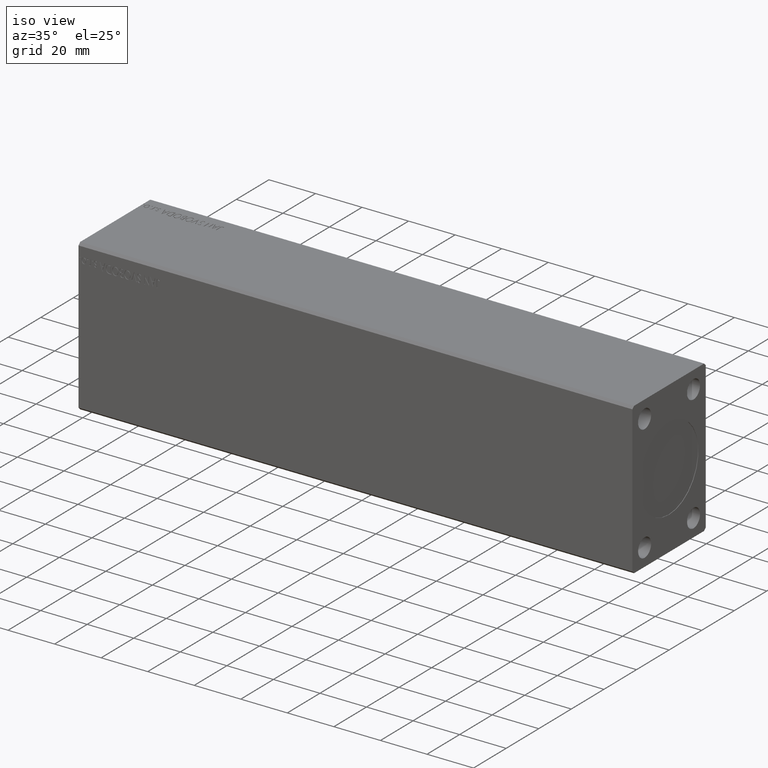
[diagram: clean part render]
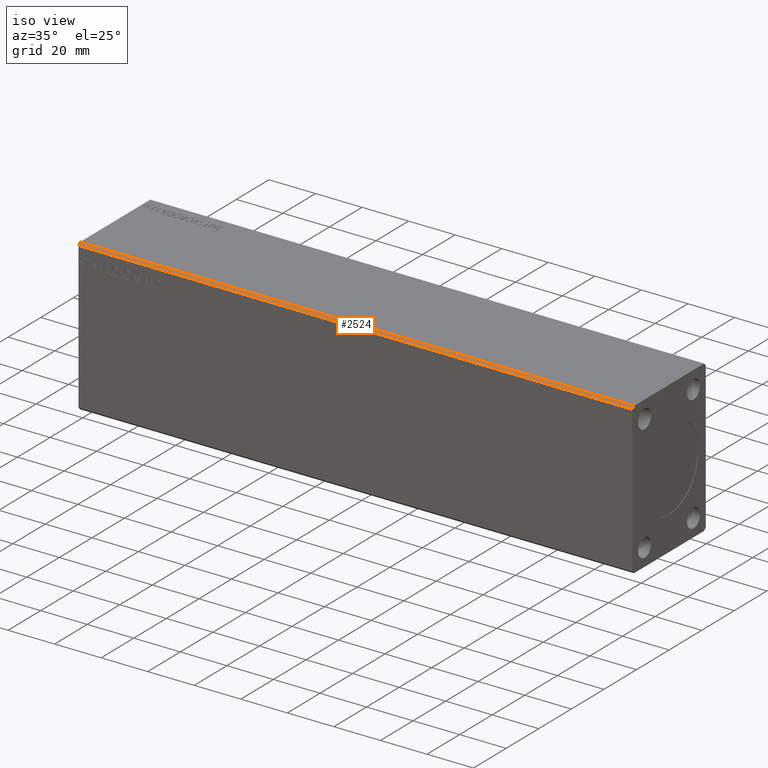
[diagram: same view with one face highlighted and labeled with its STEP entity id]
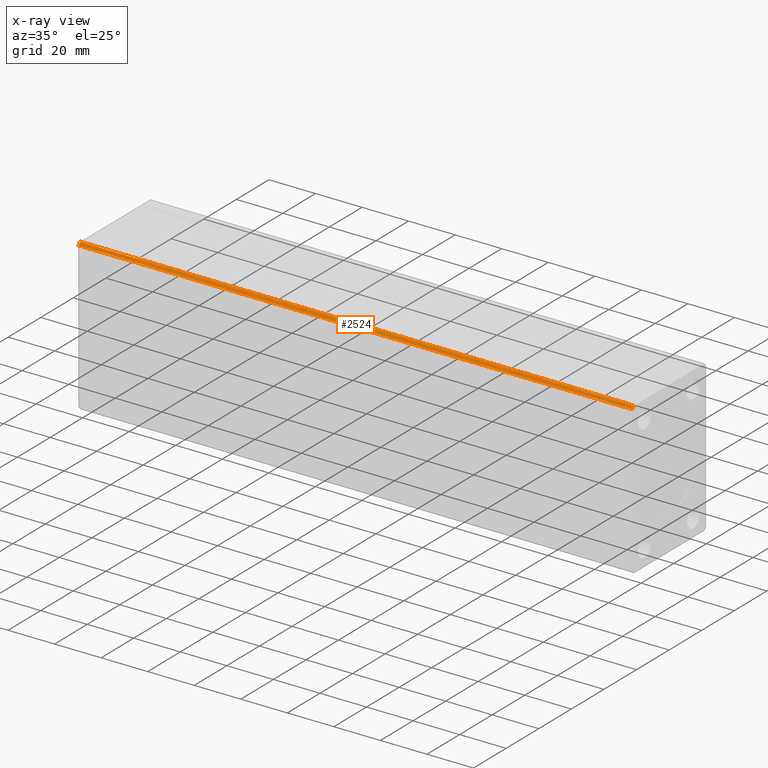
[diagram: x-ray of the same camera — body ghosted, the highlighted face saturated]
A machine part, iso view. The second image highlights one B-rep face of the part: STEP entity #2524.
The next image is the same camera in x-ray: the body ghosted, the highlighted face saturated — about 0% of this face is hidden behind the body in this view.
In plain terms, the highlighted planar face has unit normal (0, 0.7071, -0.7071).
Its self-contained STEP definition (entity closure, byte-faithful):
#1630 = DIRECTION ( 'NONE',  ( 0.000000000000000000, -0.7071067811865474617, -0.7071067811865474617 ) ) ;
#1831 = CARTESIAN_POINT ( 'NONE',  ( 238.0000000000000000, -21.50000000000001421, 32.50000000000000000 ) ) ;
#2315 = CARTESIAN_POINT ( 'NONE',  ( 0.000000000000000000, -22.50000000000001776, 31.50000000000000000 ) ) ;
#2524 = ADVANCED_FACE ( 'NONE', ( #20410 ), #16629, .F. ) ;
#2782 = VERTEX_POINT ( 'NONE', #15714 ) ;
#3559 = VECTOR ( 'NONE', #14101, 1000.000000000000114 ) ;
#3694 = DIRECTION ( 'NONE',  ( -1.000000000000000000, -0.000000000000000000, -0.000000000000000000 ) ) ;
#5008 = EDGE_LOOP ( 'NONE', ( #41740, #35257, #21778, #15519 ) ) ;
#6600 = DIRECTION ( 'NONE',  ( 0.000000000000000000, 0.7071067811865474617, 0.7071067811865474617 ) ) ;
#7056 = VECTOR ( 'NONE', #9424, 1000.000000000000000 ) ;
#9424 = DIRECTION ( 'NONE',  ( -1.000000000000000000, -0.000000000000000000, -0.000000000000000000 ) ) ;
#9705 = DIRECTION ( 'NONE',  ( 0.000000000000000000, 0.7071067811865475727, -0.7071067811865475727 ) ) ;
#13264 = VECTOR ( 'NONE', #1630, 1000.000000000000114 ) ;
#14101 = DIRECTION ( 'NONE',  ( 0.000000000000000000, -0.7071067811865474617, -0.7071067811865474617 ) ) ;
#15519 = ORIENTED_EDGE ( 'NONE', *, *, #38638, .T. ) ;
#15714 = CARTESIAN_POINT ( 'NONE',  ( 0.000000000000000000, -21.50000000000001421, 32.50000000000000000 ) ) ;
#16629 = PLANE ( 'NONE',  #44023 ) ;
#18846 = CARTESIAN_POINT ( 'NONE',  ( 238.0000000000000000, -22.50000000000001776, 31.50000000000000000 ) ) ;
#19622 = EDGE_CURVE ( 'NONE', #23565, #27502, #34479, .T. ) ;
#20410 = FACE_OUTER_BOUND ( 'NONE', #5008, .T. ) ;
#21778 = ORIENTED_EDGE ( 'NONE', *, *, #40718, .F. ) ;
#22174 = LINE ( 'NONE', #32887, #7056 ) ;
#22661 = VERTEX_POINT ( 'NONE', #1831 ) ;
#23565 = VERTEX_POINT ( 'NONE', #18846 ) ;
#25034 = CARTESIAN_POINT ( 'NONE',  ( 238.0000000000000000, -21.50000000000001421, 32.50000000000000000 ) ) ;
#27502 = VERTEX_POINT ( 'NONE', #2315 ) ;
#30100 = VECTOR ( 'NONE', #3694, 1000.000000000000000 ) ;
#32056 = EDGE_CURVE ( 'NONE', #2782, #27502, #35767, .T. ) ;
#32425 = CARTESIAN_POINT ( 'NONE',  ( 0.000000000000000000, -21.50000000000001421, 32.50000000000000000 ) ) ;
#32887 = CARTESIAN_POINT ( 'NONE',  ( 238.0000000000000000, -21.50000000000001421, 32.50000000000000000 ) ) ;
#33374 = CARTESIAN_POINT ( 'NONE',  ( 238.0000000000000000, -21.50000000000001421, 32.50000000000000000 ) ) ;
#34479 = LINE ( 'NONE', #36938, #30100 ) ;
#35257 = ORIENTED_EDGE ( 'NONE', *, *, #19622, .F. ) ;
#35767 = LINE ( 'NONE', #32425, #13264 ) ;
#36938 = CARTESIAN_POINT ( 'NONE',  ( 238.0000000000000000, -22.50000000000001776, 31.50000000000000000 ) ) ;
#38638 = EDGE_CURVE ( 'NONE', #22661, #2782, #22174, .T. ) ;
#40718 = EDGE_CURVE ( 'NONE', #22661, #23565, #41344, .T. ) ;
#41344 = LINE ( 'NONE', #25034, #3559 ) ;
#41740 = ORIENTED_EDGE ( 'NONE', *, *, #32056, .T. ) ;
#44023 = AXIS2_PLACEMENT_3D ( 'NONE', #33374, #9705, #6600 ) ;